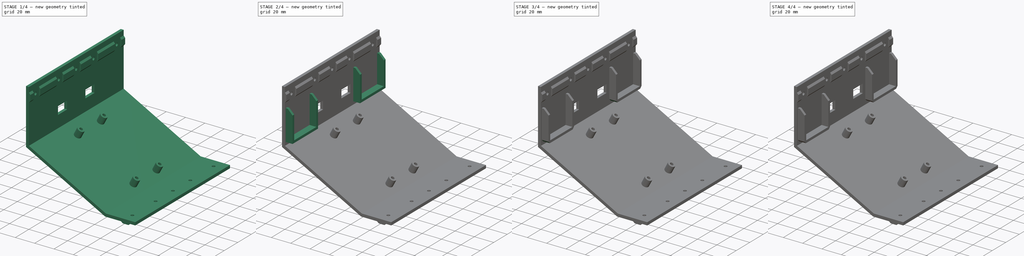
[diagram: build sequence overview — one tinted view per stage of 4, left to right]
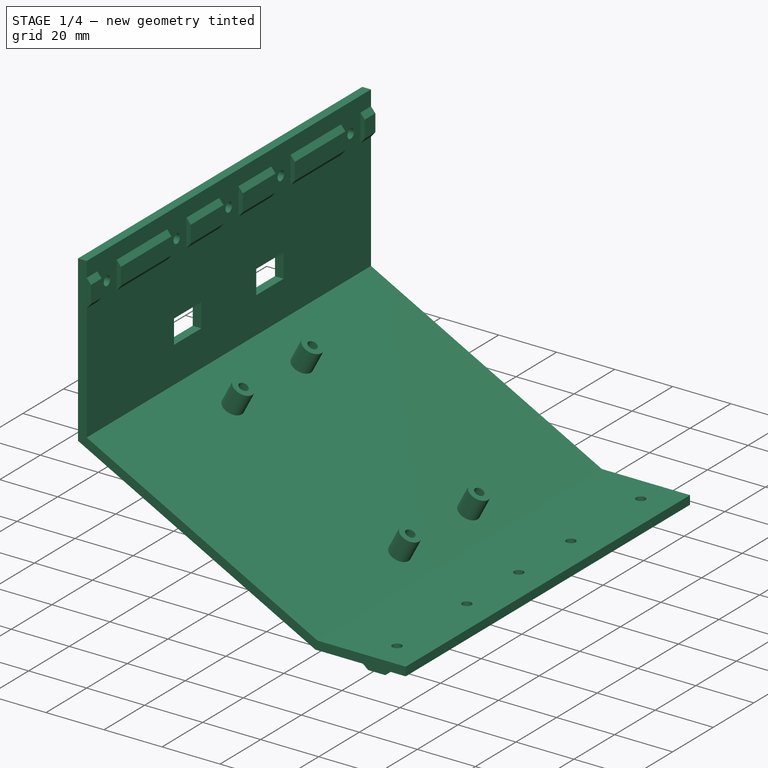
[diagram: stage 1 of 4 — iso view after this stage's code; geometry added in this stage tinted green]
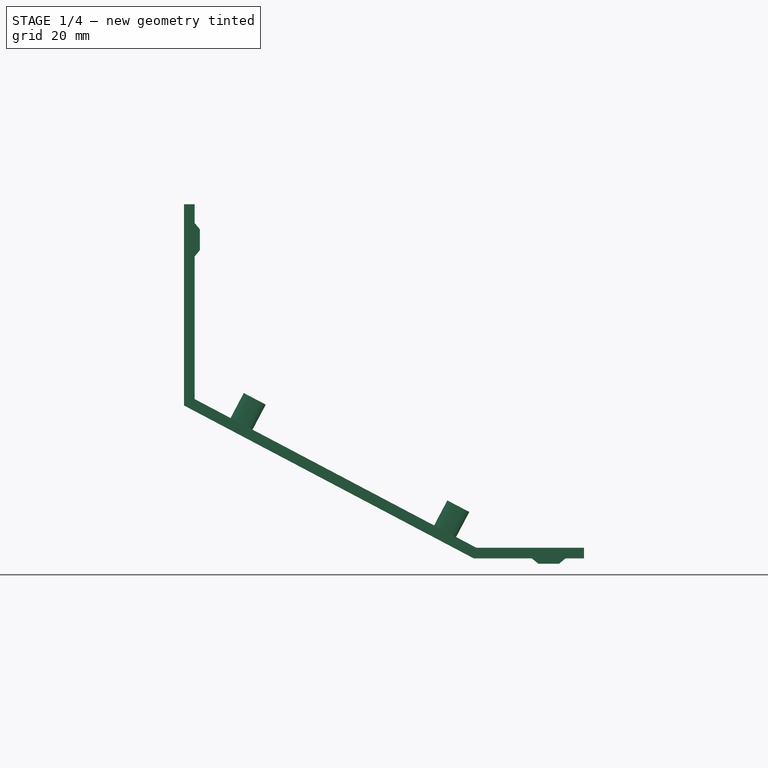
[diagram: stage 1 of 4 — front view after this stage's code; geometry added in this stage tinted green]
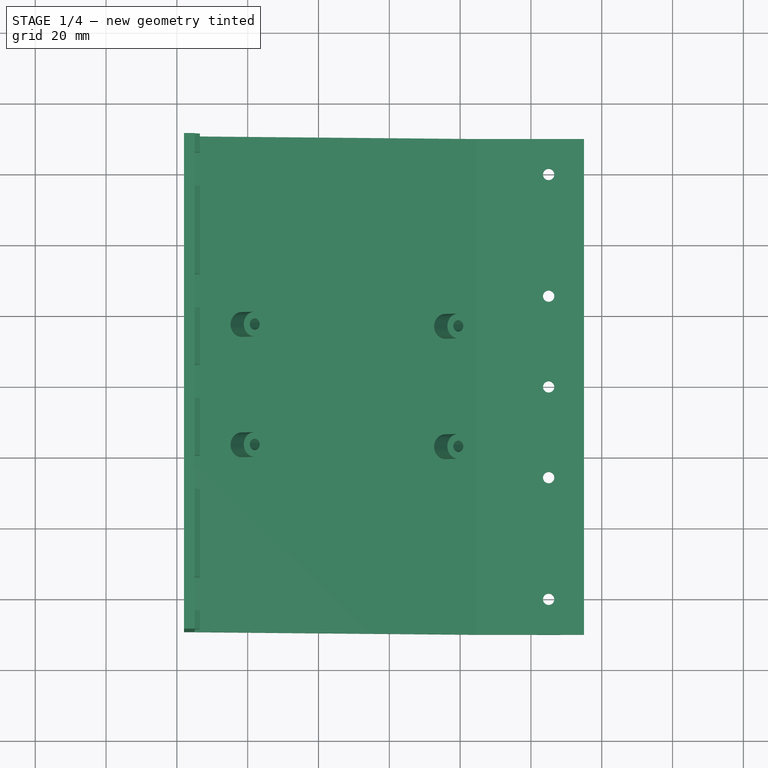
[diagram: stage 1 of 4 — top view after this stage's code; geometry added in this stage tinted green]
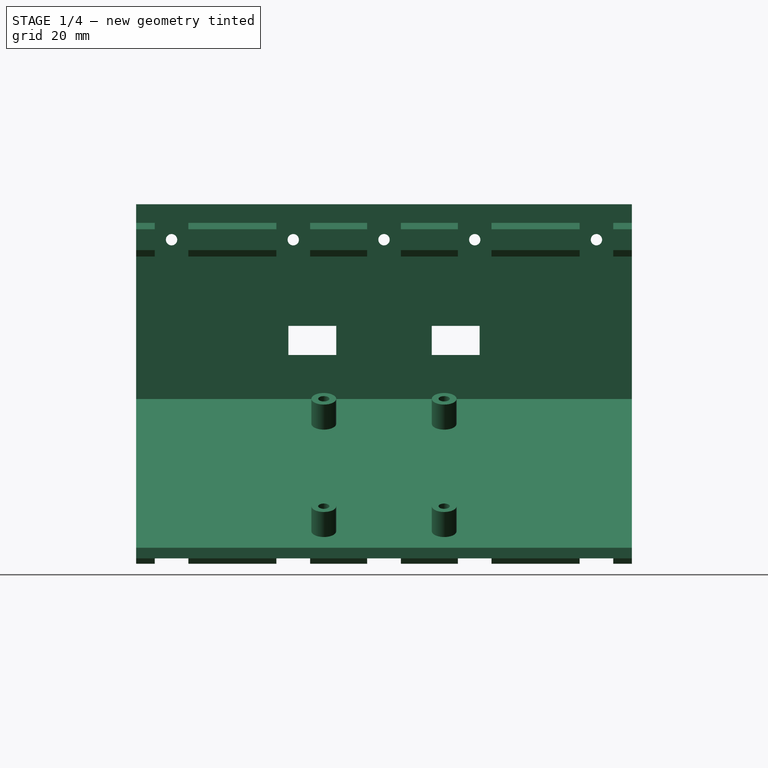
[diagram: stage 1 of 4 — right view after this stage's code; geometry added in this stage tinted green]
FCSTD DOCUMENT  (FreeCAD 1.0R39109 (Git))
Label: carter-solido
License: All rights reserved
LicenseURL: https://en.wikipedia.org/wiki/All_rights_reserved
objects: Sketcher::SketchObject×5, PartDesign::Pocket×4, PartDesign::FeatureBase×2, PartDesign::Pad×2, PartDesign::Chamfer×2, PartDesign::Body×2, Part::Part2DObjectPython×2, Part::Feature×1, Part::Refine×1
note: 44 computed .brp shape members not serialized (recipe doc carries the construction recipe); baked Part::Feature solids carry a one-line shape summary decoded from their .brp

FEATURE [Part::Feature] Body001  label="Body"
  shape: bbox 113 x 140 x 101.5 mm, 121 faces (baked)
FEATURE [PartDesign::FeatureBase] BaseFeature
  BaseFeature = -> Body001
  Suppressed = false
FEATURE [Sketcher::SketchObject] Sketch
  ArcFitTolerance = 0
  AttachmentSupport = -> [BaseFeature]
  ExternalGeometry = -> [BaseFeature]
  FullyConstrained = true
  MakeInternals = false
  MapMode = 5
  Placement = pos=(-55,0,0) rot=(0.57735,0.57735,0.57735;2.0944rad)
  sketch-geometry (9):
    g0: LineSegment StartX=-165.7 StartY=39.7 StartZ=0 EndX=-134 EndY=39.7 EndZ=0
    g1: LineSegment StartX=-134 StartY=39.7 StartZ=0 EndX=-134 EndY=11.1 EndZ=0
    g2: LineSegment StartX=-134 StartY=11.1 StartZ=0 EndX=-165.7 EndY=11.1 EndZ=0
    g3: LineSegment StartX=-165.7 StartY=11.1 StartZ=0 EndX=-165.7 EndY=39.7 EndZ=0
    g4: LineSegment StartX=-66 StartY=39.7 StartZ=0 EndX=-34.3 EndY=39.7 EndZ=0
    g5: LineSegment StartX=-34.3 StartY=39.7 StartZ=0 EndX=-34.3 EndY=11.1 EndZ=0
    g6: LineSegment StartX=-34.3 StartY=11.1 StartZ=0 EndX=-66 EndY=11.1 EndZ=0
    g7: LineSegment StartX=-66 StartY=11.1 StartZ=0 EndX=-66 EndY=39.7 EndZ=0
    g8: Circle CenterX=-100 CenterY=32 CenterZ=0 NormalX=0 NormalY=0 NormalZ=1 AngleXU=0 Radius=6.35
  constraints (22):
    c: Coincident(g0,g1)
    c: Coincident(g1,g2)
    c: Coincident(g2,g3)
    c: Coincident(g3,g0)
    c: Horizontal(g0)
    c: Horizontal(g2)
    c: Vertical(g1)
    c: Vertical(g3)
    c: Coincident(g0,g-4)
    c: Coincident(g1,g-6)
    c: Coincident(g4,g5)
    c: Coincident(g5,g6)
    c: Coincident(g6,g7)
    c: Coincident(g7,g4)
    c: Horizontal(g4)
    c: Horizontal(g6)
    c: Vertical(g5)
    c: Vertical(g7)
    c: Coincident(g4,g-8)
    c: Coincident(g5,g-10)
    c: Coincident(g8,g-11)
    c: Equal(g8,g-11)
FEATURE [PartDesign::Pad] Pad
  BaseFeature = -> BaseFeature
  Direction = (1,0,0)
  Length = 10
  Length2 = 10
  Profile = -> Sketch
  ReferenceAxis = -> Sketch [N_Axis]
  Suppressed = false
  Type = 3
  UpToFace = -> BaseFeature [Face16]
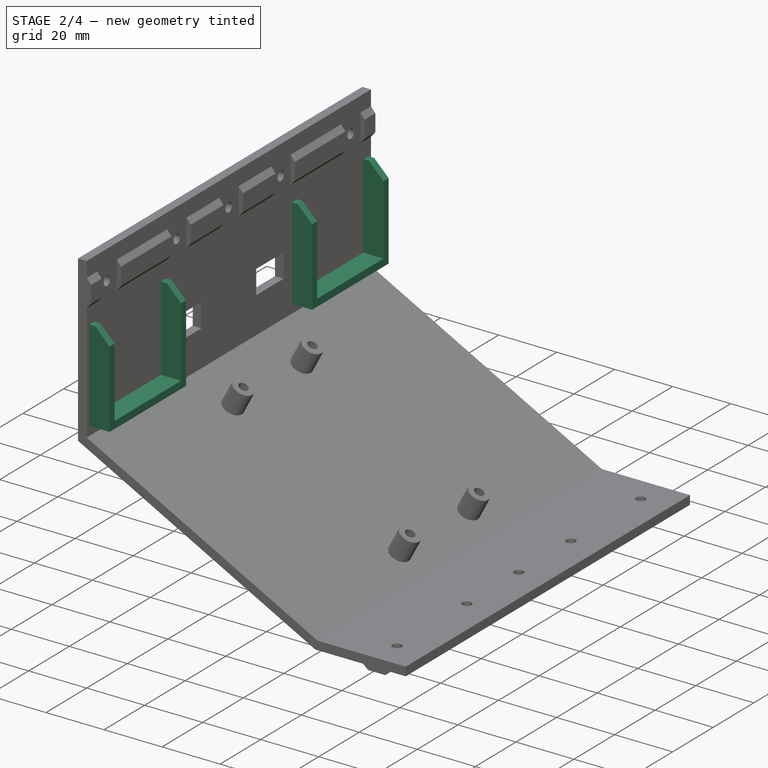
[diagram: stage 2 of 4 — iso view after this stage's code; geometry added in this stage tinted green]
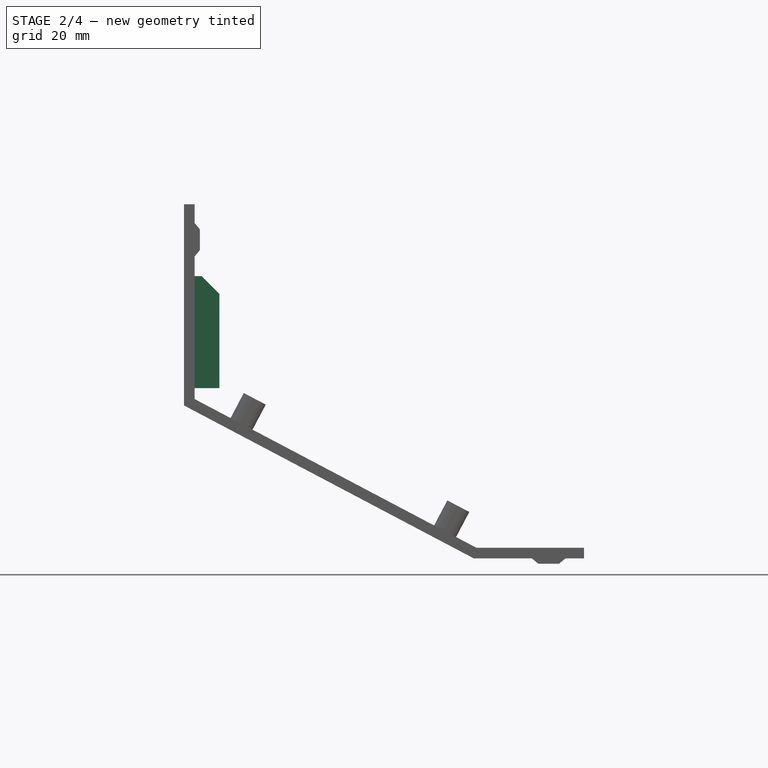
[diagram: stage 2 of 4 — front view after this stage's code; geometry added in this stage tinted green]
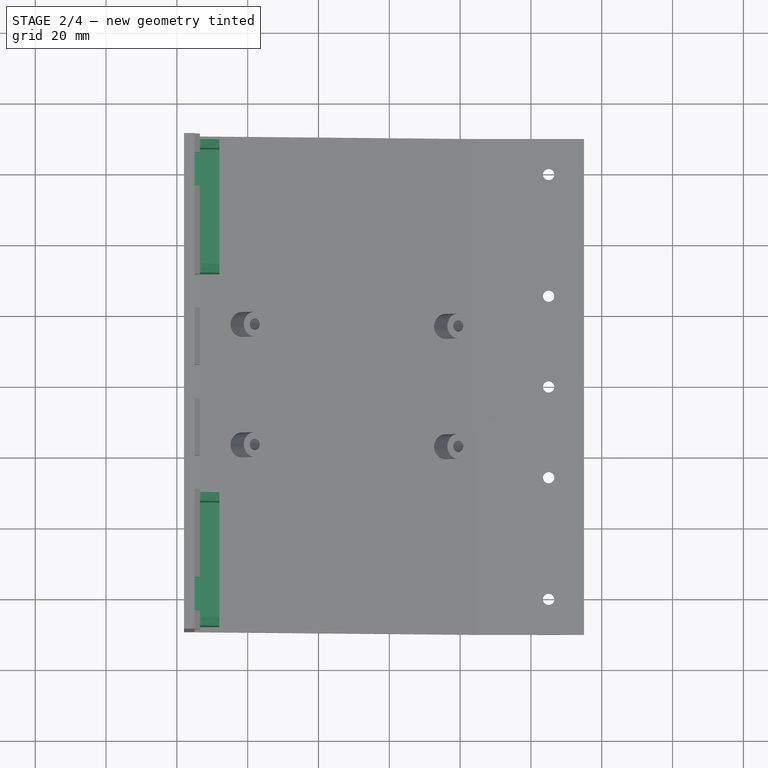
[diagram: stage 2 of 4 — top view after this stage's code; geometry added in this stage tinted green]
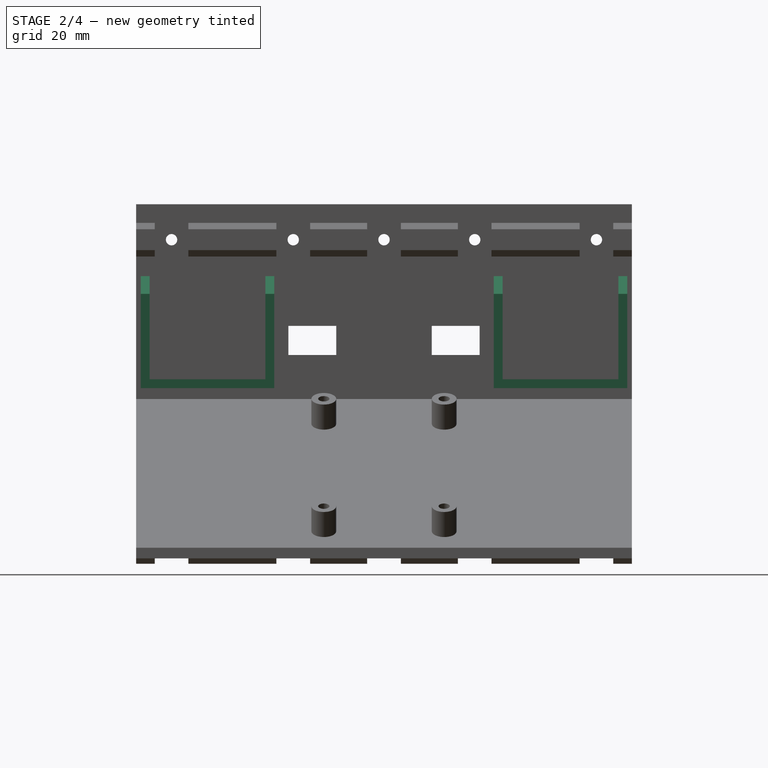
[diagram: stage 2 of 4 — right view after this stage's code; geometry added in this stage tinted green]
FEATURE [Sketcher::SketchObject] Sketch001
  ArcFitTolerance = 0
  AttachmentSupport = -> [Pad]
  ExternalGeometry = -> [Pad]
  FullyConstrained = true
  MakeInternals = false
  MapMode = 5
  Placement = pos=(-55,0,0) rot=(0.57735,0.57735,0.57735;2.0944rad)
  sketch-geometry (22):
    g0: LineSegment [constr] StartX=-165.7 StartY=25.4 StartZ=0 EndX=-34.3 EndY=25.4 EndZ=0
    g1: LineSegment [constr] StartX=-149.85 StartY=39.7 StartZ=0 EndX=-149.85 EndY=11.1 EndZ=0
    g2: LineSegment [constr] StartX=-50.15 StartY=39.7 StartZ=0 EndX=-50.15 EndY=11.1 EndZ=0
    g3: LineSegment [constr] StartX=-165.7 StartY=39.7 StartZ=0 EndX=-134 EndY=39.7 EndZ=0
    g4: LineSegment StartX=-134 StartY=39.7 StartZ=0 EndX=-134 EndY=11.1 EndZ=0
    g5: LineSegment StartX=-134 StartY=11.1 StartZ=0 EndX=-165.7 EndY=11.1 EndZ=0
    g6: LineSegment StartX=-165.7 StartY=11.1 StartZ=0 EndX=-165.7 EndY=39.7 EndZ=0
    g7: LineSegment [constr] StartX=-66 StartY=39.7 StartZ=0 EndX=-34.3 EndY=39.7 EndZ=0
    g8: LineSegment StartX=-34.3 StartY=39.7 StartZ=0 EndX=-34.3 EndY=11.1 EndZ=0
    g9: LineSegment StartX=-34.3 StartY=11.1 StartZ=0 EndX=-66 EndY=11.1 EndZ=0
    g10: LineSegment StartX=-66 StartY=11.1 StartZ=0 EndX=-66 EndY=39.7 EndZ=0
    g11: LineSegment StartX=-165.7 StartY=39.7 StartZ=0 EndX=-168.7 EndY=39.7 EndZ=0
    g12: LineSegment StartX=-168.7 StartY=39.7 StartZ=0 EndX=-168.7 EndY=8.1 EndZ=0
    g13: LineSegment StartX=-168.7 StartY=8.1 StartZ=0 EndX=-131 EndY=8.1 EndZ=0
    g14: LineSegment StartX=-131 StartY=8.1 StartZ=0 EndX=-131 EndY=39.7 EndZ=0
    g15: LineSegment StartX=-131 StartY=39.7 StartZ=0 EndX=-134 EndY=39.7 EndZ=0
    g16: LineSegment StartX=-66 StartY=39.7 StartZ=0 EndX=-69 EndY=39.7 EndZ=0
    g17: LineSegment StartX=-69 StartY=39.7 StartZ=0 EndX=-69 EndY=8.1 EndZ=0
    g18: LineSegment StartX=-69 StartY=8.1 StartZ=0 EndX=-31.3 EndY=8.1 EndZ=0
    g19: LineSegment StartX=-31.3 StartY=8.1 StartZ=0 EndX=-31.3 EndY=39.7 EndZ=0
    g20: LineSegment StartX=-31.3 StartY=39.7 StartZ=0 EndX=-34.3 EndY=39.7 EndZ=0
    g21: LineSegment [constr] StartX=-165.7 StartY=11.1 StartZ=0 EndX=-165.7 EndY=8.1 EndZ=0
  constraints (58):
    c: Symmetric(g-3,g-3,g0)
    c: PointOnObject(g0,g-3)
    c: PointOnObject(g0,g-6)
    c: Symmetric(g-6,g-5,g2)
    c: Symmetric(g-4,g-3,g1)
    c: Horizontal(g1,g2)
    c: Horizontal(g2,g-4)
    c: Horizontal(g2,g1)
    c: Horizontal(g1,g-4)
    c: Coincident(g3,g4)
    c: Coincident(g4,g5)
    c: Coincident(g5,g6)
    c: Coincident(g6,g3)
    c: Horizontal(g3)
    c: Horizontal(g5)
    c: Vertical(g4)
    c: Vertical(g6)
    c: Coincident(g3,g-3)
    c: Coincident(g4,g-4)
    c: Coincident(g7,g8)
    c: Coincident(g8,g9)
    c: Coincident(g9,g10)
    c: Coincident(g10,g7)
    c: Horizontal(g7)
    c: Horizontal(g9)
    c: Vertical(g8)
    c: Vertical(g10)
    c: Coincident(g7,g-5)
    c: Coincident(g8,g-6)
    c: Coincident(g6,g11)
    c: Coincident(g11,g12)
    c: Coincident(g12,g13)
    c: Coincident(g13,g14)
    c: Coincident(g14,g15)
    c: Coincident(g15,g4)
    c: Coincident(g10,g16)
    c: Coincident(g16,g17)
    c: Coincident(g17,g18)
    c: Coincident(g18,g19)
    c: Coincident(g19,g20)
    c: Coincident(g20,g8)
    c: Symmetric(g17,g18,g2)
    c: Symmetric(g12,g13,g1)
    c: Horizontal(g11)
    c: Vertical(g19)
    c: Vertical(g17)
    c: Vertical(g14)
    c: Vertical(g12)
    c: Horizontal(g16)
    c: Horizontal(g20)
    c: Equal(g16,g11)
    c: Horizontal(g15)
    c: Equal(g17,g14)
    c: DistanceX(g11,g11) = 3
    c: Coincident(g21,g5)
    c: PointOnObject(g21,g13)
    c: Vertical(g21)
    c: Equal(g21,g11)
FEATURE [PartDesign::Pad] Pad001
  BaseFeature = -> Pad
  Direction = (1,0,0)
  Length = 7
  Length2 = 10
  Profile = -> Sketch001
  ReferenceAxis = -> Sketch001 [N_Axis]
  Suppressed = false
  Type = 0
FEATURE [Sketcher::SketchObject] Sketch002
  ArcFitTolerance = 0
  AttachmentSupport = -> [Pad001]
  ExternalGeometry = -> [Pad001]
  FullyConstrained = false
  MakeInternals = false
  MapMode = 5
  Placement = pos=(-48,0,0) rot=(0.57735,0.57735,0.57735;2.0944rad)
  sketch-geometry (12):
    g0: LineSegment StartX=-166.2 StartY=40.2 StartZ=0 EndX=-133.5 EndY=40.2 EndZ=0
    g1: LineSegment StartX=-133.5 StartY=40.2 StartZ=0 EndX=-133.5 EndY=10.6 EndZ=0
    g2: LineSegment StartX=-133.5 StartY=10.6 StartZ=0 EndX=-166.2 EndY=10.6 EndZ=0
    g3: LineSegment StartX=-166.2 StartY=10.6 StartZ=0 EndX=-166.2 EndY=40.2 EndZ=0
    g4: LineSegment StartX=-66.5 StartY=40.2 StartZ=0 EndX=-33.8 EndY=40.2 EndZ=0
    g5: LineSegment StartX=-33.8 StartY=40.2 StartZ=0 EndX=-33.8 EndY=10.6 EndZ=0
    g6: LineSegment StartX=-33.8 StartY=10.6 StartZ=0 EndX=-66.5 EndY=10.6 EndZ=0
    g7: LineSegment StartX=-66.5 StartY=10.6 StartZ=0 EndX=-66.5 EndY=40.2 EndZ=0
    g8: LineSegment [constr] StartX=-149.85 StartY=49.4755 StartZ=0 EndX=-149.85 EndY=-10.048 EndZ=0
    g9: LineSegment [constr] StartX=-175.461 StartY=25.4 StartZ=0 EndX=-111.14 EndY=25.4 EndZ=0
    g10: LineSegment [constr] StartX=-50.15 StartY=54.4231 StartZ=0 EndX=-50.15 EndY=-4.48315 EndZ=0
    g11: LineSegment [constr] StartX=-83.4783 StartY=25.4 StartZ=0 EndX=-13.0264 EndY=25.4 EndZ=0
  constraints (24):
    c: Coincident(g0,g1)
    c: Coincident(g1,g2)
    c: Coincident(g2,g3)
    c: Coincident(g3,g0)
    c: Horizontal(g2)
    c: Vertical(g1)
    c: Coincident(g4,g5)
    c: Coincident(g5,g6)
    c: Coincident(g6,g7)
    c: Coincident(g7,g4)
    c: Horizontal(g6)
    c: Vertical(g5)
    c: Symmetric(g-8,g-5,g11)
    c: Symmetric(g-4,g-7,g9)
    c: Symmetric(g-4,g-3,g8)
    c: Symmetric(g-6,g-5,g10)
    c: Symmetric(g4,g6,g11)
    c: Symmetric(g4,g4,g10)
    c: Symmetric(g0,g0,g8)
    c: Symmetric(g0,g2,g9)
    c: Equal(g1,g7)
    c: DistanceY(g-5,g4) = 0.5
    c: DistanceX(g-6,g4) = 0.5
    c: Equal(g4,g0)
FEATURE [PartDesign::Pocket] Pocket
  BaseFeature = -> Pad001
  Direction = (-1,0,0)
  Length = 0
  Length2 = 5
  Profile = -> Sketch002
  ReferenceAxis = -> Sketch002 [N_Axis]
  Suppressed = false
  Type = 3
  UpToFace = -> Pad001 [Face90]
FEATURE [PartDesign::Chamfer] Chamfer
  Angle = 45
  Base = -> Pocket [Edge290,Edge302,Edge285,Edge276]
  BaseFeature = -> Pocket
  ChamferType = 0
  FlipDirection = false
  Size = 5
  Size2 = 1
  SupportTransform = false
  Suppressed = false
  UseAllEdges = false
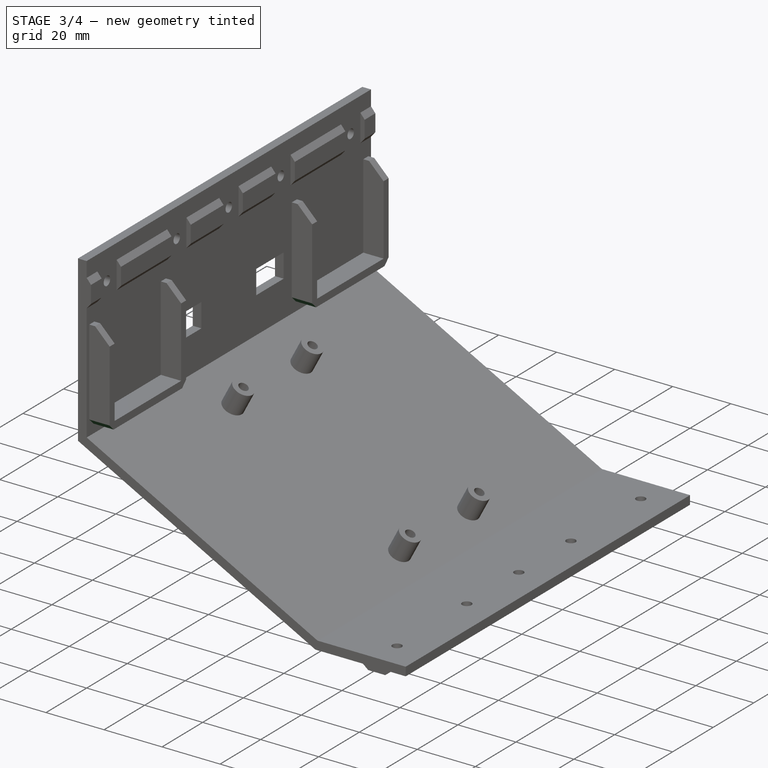
[diagram: stage 3 of 4 — iso view after this stage's code; geometry added in this stage tinted green]
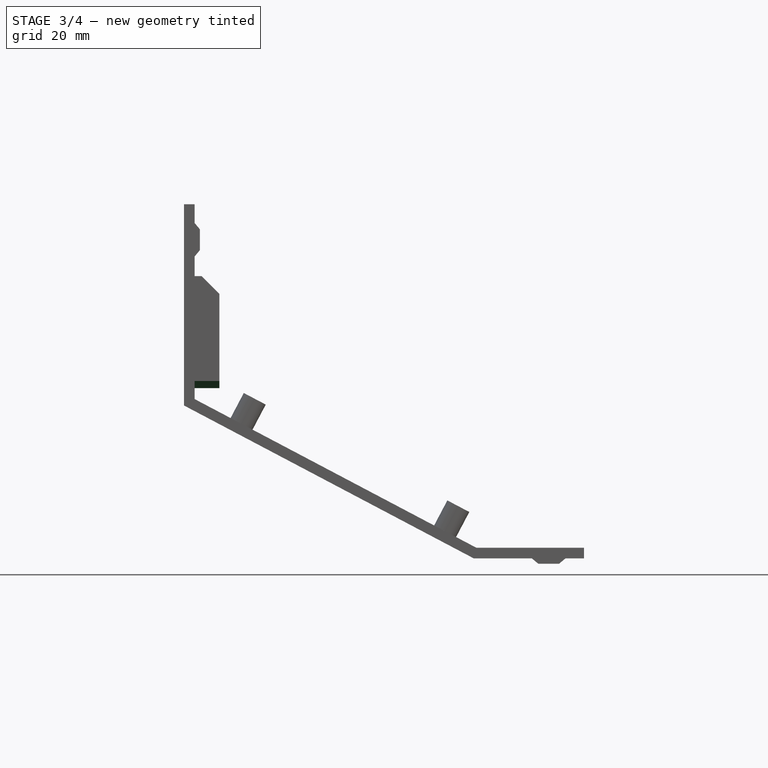
[diagram: stage 3 of 4 — front view after this stage's code; geometry added in this stage tinted green]
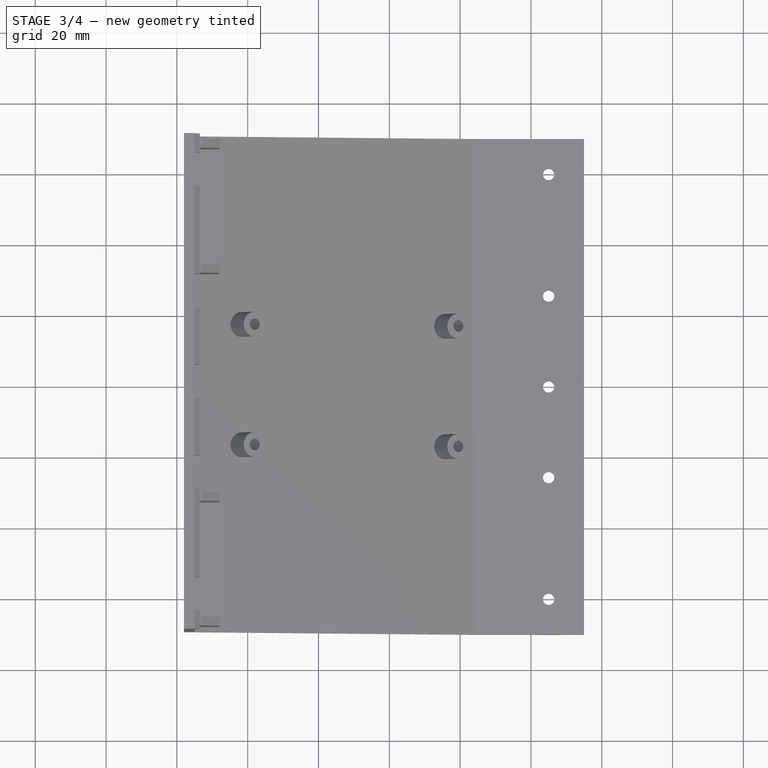
[diagram: stage 3 of 4 — top view after this stage's code; geometry added in this stage tinted green]
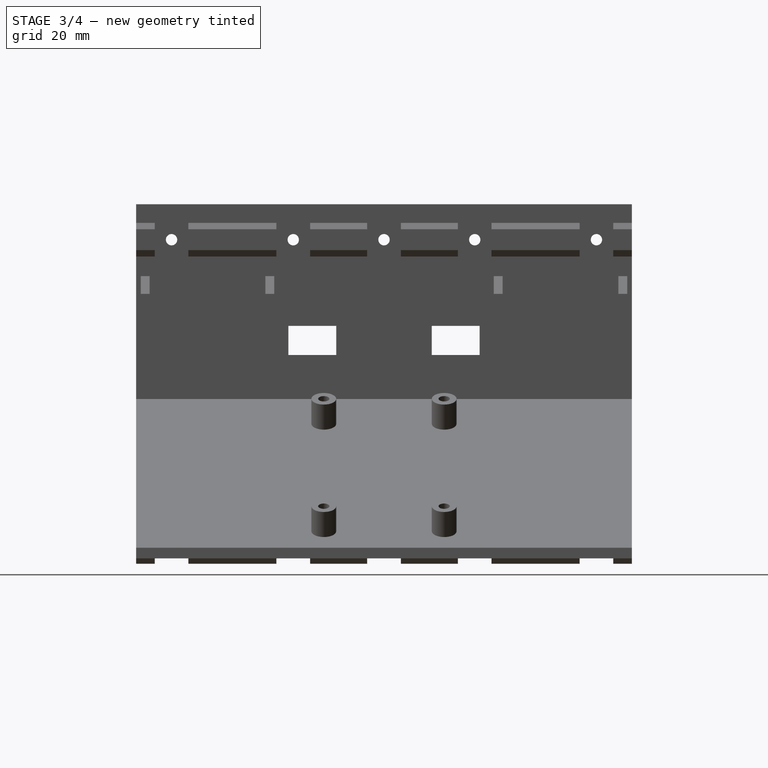
[diagram: stage 3 of 4 — right view after this stage's code; geometry added in this stage tinted green]
FEATURE [PartDesign::Chamfer] Chamfer001
  Angle = 45
  Base = -> Chamfer [Edge8,Edge57,Edge160,Edge161]
  BaseFeature = -> Chamfer
  ChamferType = 0
  FlipDirection = false
  Size = 2
  Size2 = 1
  SupportTransform = false
  Suppressed = false
  UseAllEdges = false
FEATURE [PartDesign::Body] Body  label="Body001"
  AllowCompound = false
  BaseFeature = -> Body001
  Group = -> [BaseFeature,Sketch,Pad,Sketch001,Pad001,Sketch002,Pocket,Chamfer,Chamfer001]
  Origin = -> Origin
  Tip = -> Chamfer001
FEATURE [Part::Refine] Body002
  Source = -> Body
FEATURE [PartDesign::FeatureBase] BaseFeature001
  BaseFeature = -> Body002
  Suppressed = false
FEATURE [Sketcher::SketchObject] Sketch003
  ArcFitTolerance = 0
  AttachmentSupport = -> [BaseFeature001]
  ExternalGeometry = -> [BaseFeature001]
  FullyConstrained = false
  MakeInternals = false
  MapMode = 5
  Placement = pos=(-58,6e-16,0) rot=(0.57735,-0.57735,-0.57735;2.0944rad)
  sketch-geometry (5):
    g0: LineSegment StartX=30 StartY=60 StartZ=0 EndX=170 EndY=60 EndZ=0
    g1: LineSegment StartX=170 StartY=60 StartZ=0 EndX=170 EndY=44.5 EndZ=0
    g2: LineSegment StartX=170 StartY=44.5 StartZ=0 EndX=30 EndY=44.5 EndZ=0
    g3: LineSegment StartX=30 StartY=44.5 StartZ=0 EndX=30 EndY=60 EndZ=0
    g4: Circle [constr] CenterX=74.372 CenterY=50 CenterZ=0 NormalX=0 NormalY=0 NormalZ=1 AngleXU=0 Radius=5.5
  constraints (13):
    c: Coincident(g0,g1)
    c: Coincident(g1,g2)
    c: Coincident(g2,g3)
    c: Coincident(g3,g0)
    c: Horizontal(g0)
    c: Horizontal(g2)
    c: Vertical(g1)
    c: Vertical(g3)
    c: Coincident(g0,g-3)
    c: PointOnObject(g-3,g1)
    c: Coincident(g4,g-4)
    c: Tangent(g4,g2)
    c: Diameter(g4) = 11
FEATURE [Part::Part2DObjectPython] ShapeString  # Draft 2D object (typed FeaturePython)
  FontFile = <userpath>/Documentos/trekking/pecas/carter/Ubuntu_Mono/UbuntuMono-Bold.ttf
  Fuse = false
  Justification = 6
  JustificationReference = 0
  KeepLeftMargin = true
  MakeFace = true
  ObliqueAngle = 0
  Placement = pos=(-58,-62.4,30) rot=(0.57735,-0.57735,-0.57735;2.0944rad)
  ScaleToSize = false
  Size = 7
  String = VOYAGER
  Tracking = 0
FEATURE [Part::Part2DObjectPython] ShapeString001  # Draft 2D object (typed FeaturePython)
  FontFile = <userpath>/Documentos/trekking/pecas/carter/Ubuntu_Mono/UbuntuMono-Bold.ttf
  Fuse = false
  Justification = 6
  JustificationReference = 0
  KeepLeftMargin = true
  MakeFace = true
  ObliqueAngle = 0
  Placement = pos=(-58,-65.5,5) rot=(0.57735,-0.57735,-0.57735;2.0944rad)
  ScaleToSize = false
  Size = 5
  String = NCC-74656
  Tracking = 0
FEATURE [PartDesign::Pocket] Pocket001
  BaseFeature = -> BaseFeature001
  Direction = (1,0,0)
  Length = 1.5
  Length2 = 5
  Profile = -> ShapeString
  ReferenceAxis = -> ShapeString [N_Axis]
  Suppressed = false
  Type = 0
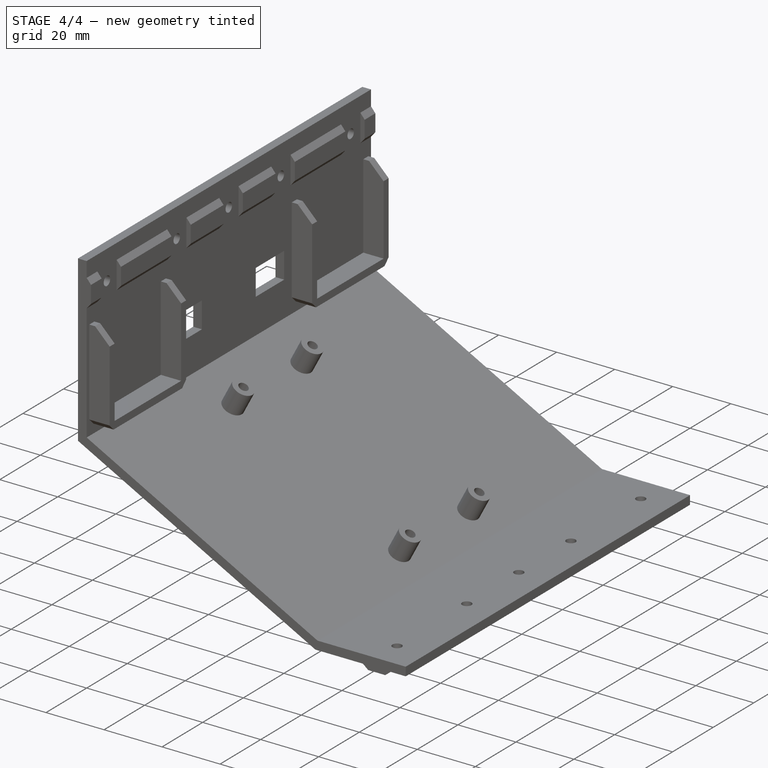
[diagram: stage 4 of 4 — iso view after this stage's code; geometry added in this stage tinted green]
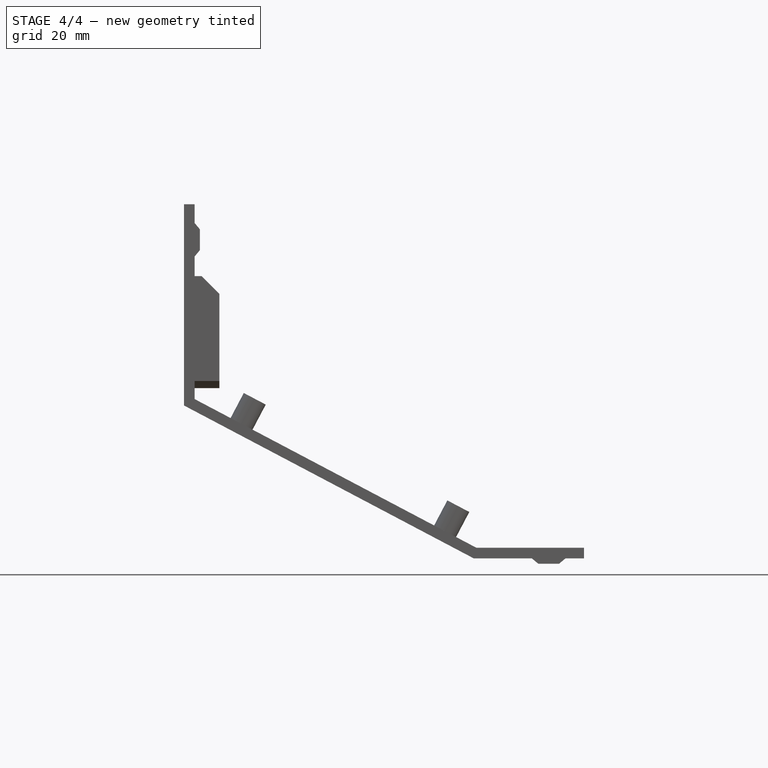
[diagram: stage 4 of 4 — front view after this stage's code; geometry added in this stage tinted green]
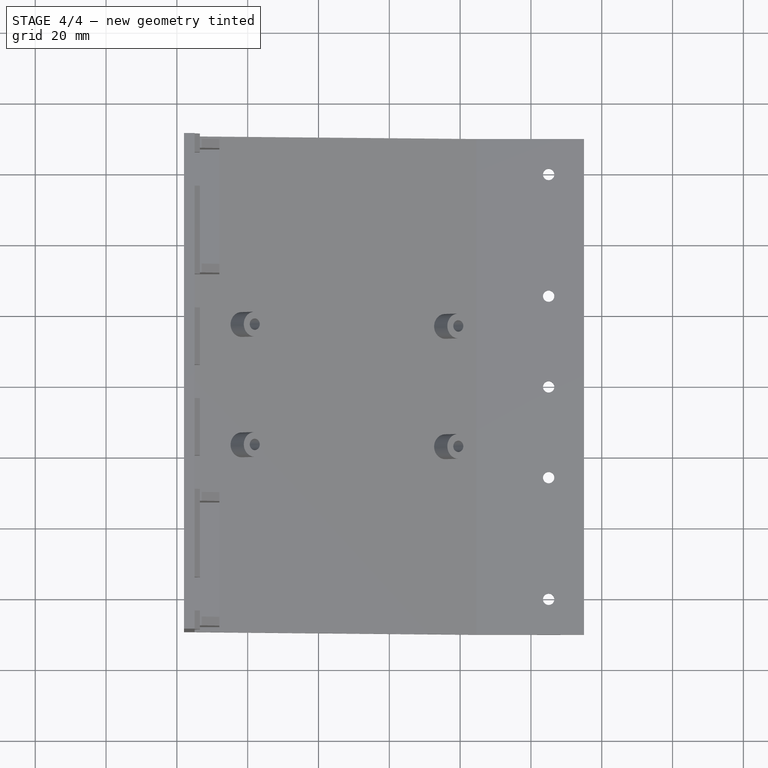
[diagram: stage 4 of 4 — top view after this stage's code; geometry added in this stage tinted green]
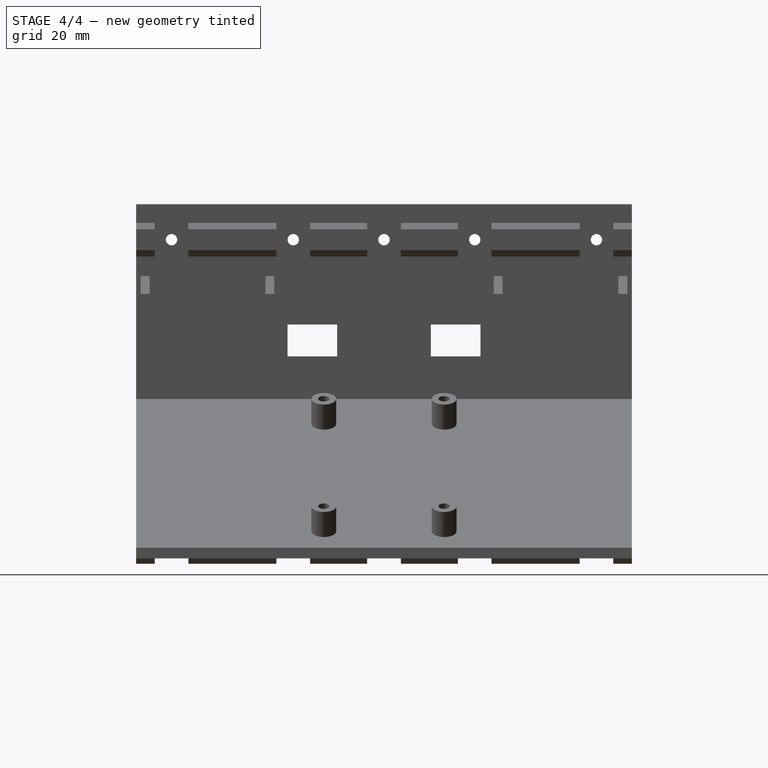
[diagram: stage 4 of 4 — right view after this stage's code; geometry added in this stage tinted green]
FEATURE [PartDesign::Pocket] Pocket002
  BaseFeature = -> Pocket001
  Direction = (1,0,0)
  Length = 1.5
  Length2 = 5
  Profile = -> ShapeString001
  ReferenceAxis = -> ShapeString001 [N_Axis]
  Suppressed = false
  Type = 0
FEATURE [Sketcher::SketchObject] Sketch004
  ArcFitTolerance = 0
  AttachmentSupport = -> [Pocket002]
  ExternalGeometry = -> [Pocket002]
  FullyConstrained = true
  MakeInternals = false
  MapMode = 5
  Placement = pos=(-58,6e-16,0) rot=(0.57735,-0.57735,-0.57735;2.0944rad)
  sketch-geometry (11):
    g0: LineSegment StartX=72.75 StartY=17.05 StartZ=0 EndX=86.75 EndY=17.05 EndZ=0
    g1: LineSegment StartX=86.75 StartY=17.05 StartZ=0 EndX=86.75 EndY=26.05 EndZ=0
    g2: LineSegment StartX=86.75 StartY=26.05 StartZ=0 EndX=72.75 EndY=26.05 EndZ=0
    g3: LineSegment StartX=72.75 StartY=26.05 StartZ=0 EndX=72.75 EndY=17.05 EndZ=0
    g4: LineSegment StartX=113.25 StartY=26.05 StartZ=0 EndX=127.25 EndY=26.05 EndZ=0
    g5: LineSegment StartX=127.25 StartY=26.05 StartZ=0 EndX=127.25 EndY=17.05 EndZ=0
    g6: LineSegment StartX=127.25 StartY=17.05 StartZ=0 EndX=113.25 EndY=17.05 EndZ=0
    g7: LineSegment StartX=113.25 StartY=17.05 StartZ=0 EndX=113.25 EndY=26.05 EndZ=0
    g8: LineSegment [constr] StartX=72.75 StartY=21.55 StartZ=0 EndX=127.25 EndY=21.55 EndZ=0
    g9: LineSegment [constr] StartX=79.75 StartY=26.05 StartZ=0 EndX=79.75 EndY=17.05 EndZ=0
    g10: LineSegment [constr] StartX=120.25 StartY=26.05 StartZ=0 EndX=120.25 EndY=17.05 EndZ=0
  constraints (31):
    c: DistanceX(g-8,g-8) = 13.5
    c: DistanceY(g-9,g-9) = 8.2
    c: Coincident(g0,g1)
    c: Coincident(g1,g2)
    c: Coincident(g2,g3)
    c: Coincident(g3,g0)
    c: Horizontal(g0)
    c: Vertical(g1)
    c: Coincident(g4,g5)
    c: Coincident(g5,g6)
    c: Coincident(g6,g7)
    c: Coincident(g7,g4)
    c: Horizontal(g4)
    c: Symmetric(g2,g0,g8)
    c: Symmetric(g-4,g-6,g8)
    c: Equal(g1,g7)
    c: Symmetric(g5,g4,g8)
    c: Symmetric(g2,g1,g9)
    c: Symmetric(g-5,g-4,g9)
    c: Symmetric(g-10,g-10,g10)
    c: Symmetric(g6,g5,g10)
    c: Vertical(g7)
    c: Equal(g4,g2)
    c: DistanceY(g3,g3) = 9
    c: DistanceX(g2,g2) = 14
    c: PointOnObject(g8,g3)
    c: PointOnObject(g8,g5)
    c: PointOnObject(g9,g2)
    c: PointOnObject(g9,g0)
    c: PointOnObject(g10,g4)
    c: PointOnObject(g10,g6)
FEATURE [PartDesign::Pocket] Pocket003
  BaseFeature = -> Pocket002
  Direction = (1,0,0)
  Length = 5
  Length2 = 5
  Profile = -> Sketch004
  ReferenceAxis = -> Sketch004 [N_Axis]
  Suppressed = false
  Type = 1
FEATURE [PartDesign::Body] Body003  label="carter-solido"
  AllowCompound = false
  BaseFeature = -> Body002
  Group = -> [BaseFeature001,Sketch003,ShapeString,ShapeString001,Pocket001,Pocket002,Sketch004,Pocket003]
  Origin = -> Origin001
  Tip = -> Pocket003
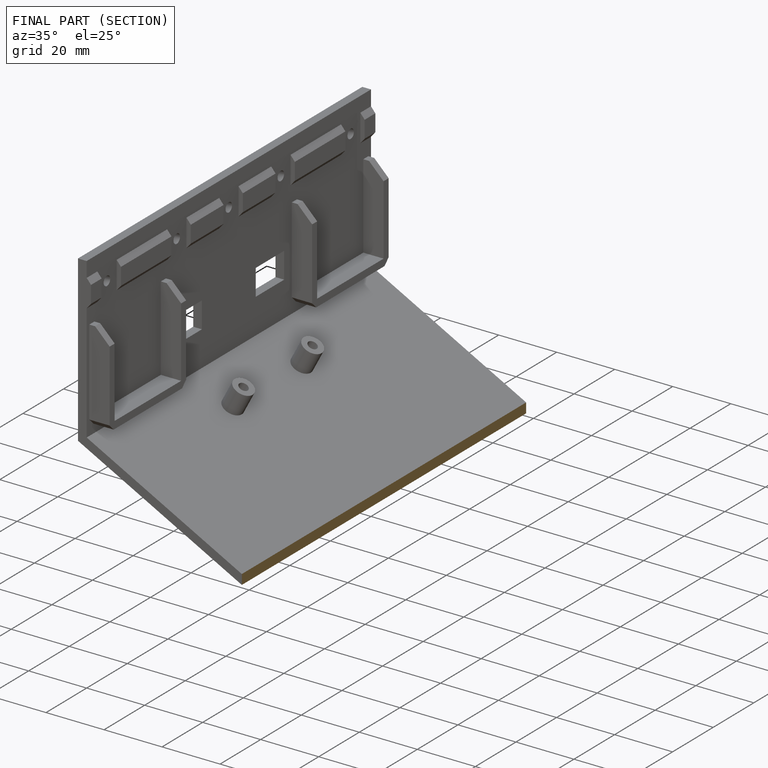
[diagram: finished part — half-section view (interior)]
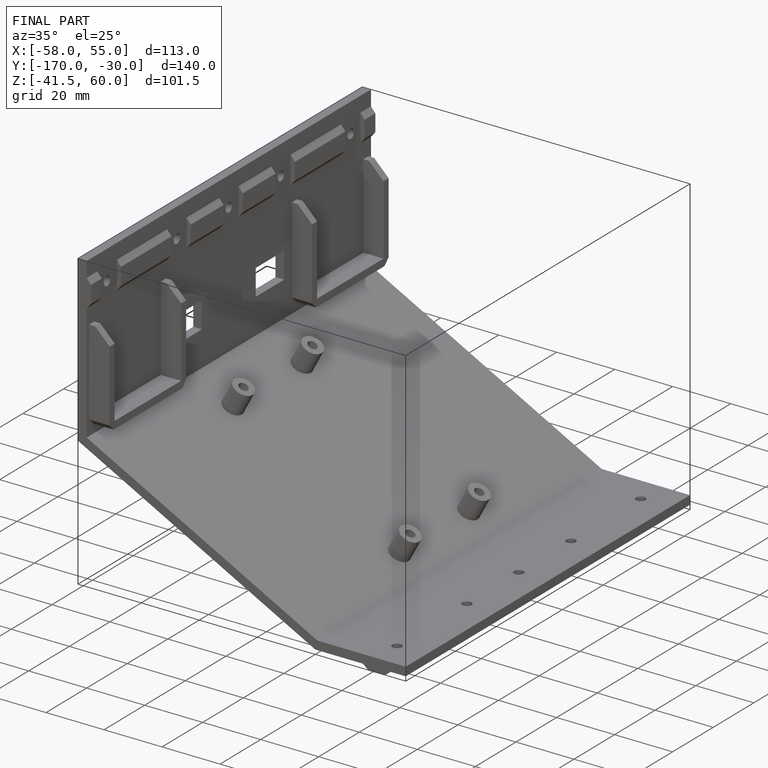
[diagram: finished part — iso view with bounding-box wireframe]
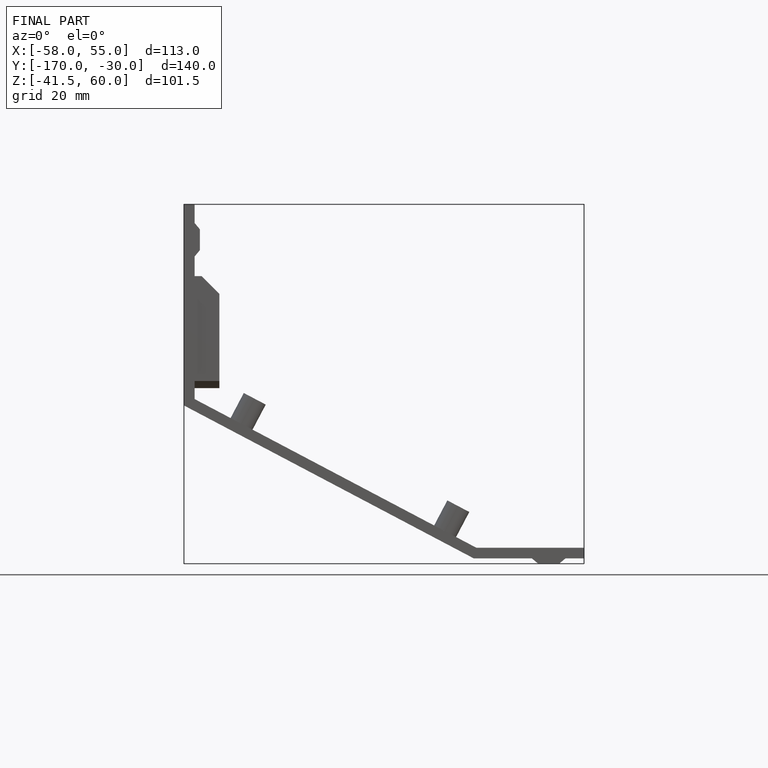
[diagram: finished part — front view with bounding-box wireframe]
